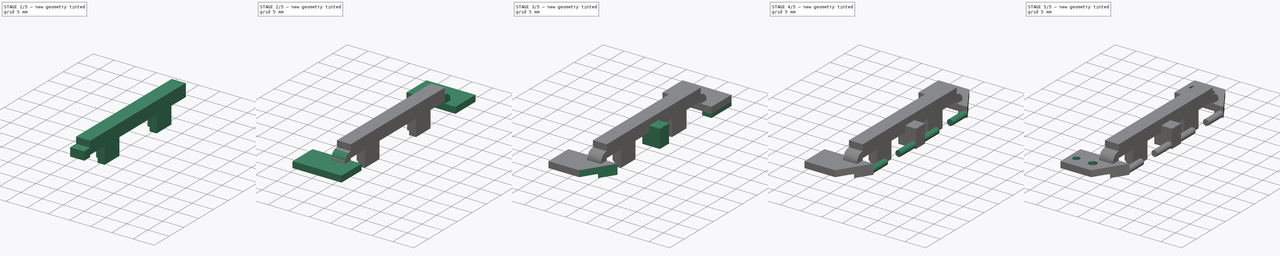
[diagram: build sequence overview — one tinted view per stage of 5, left to right]
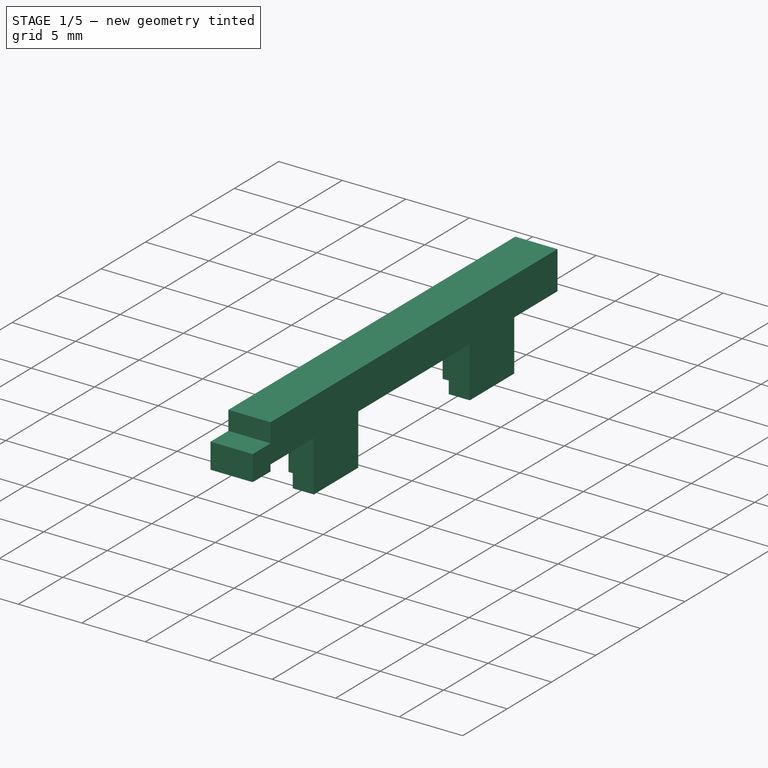
[diagram: stage 1 of 5 — iso view after this stage's code; geometry added in this stage tinted green]
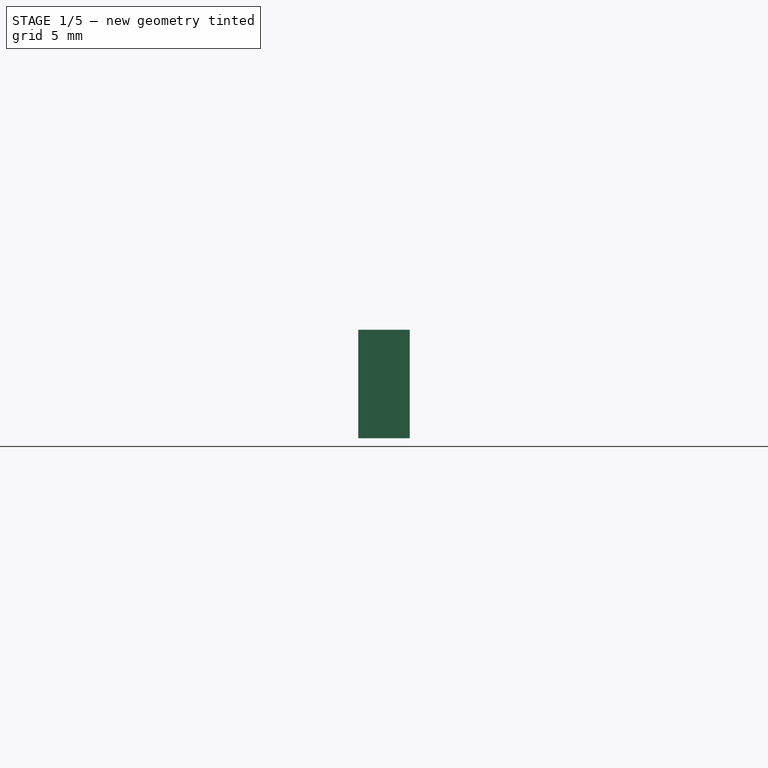
[diagram: stage 1 of 5 — front view after this stage's code; geometry added in this stage tinted green]
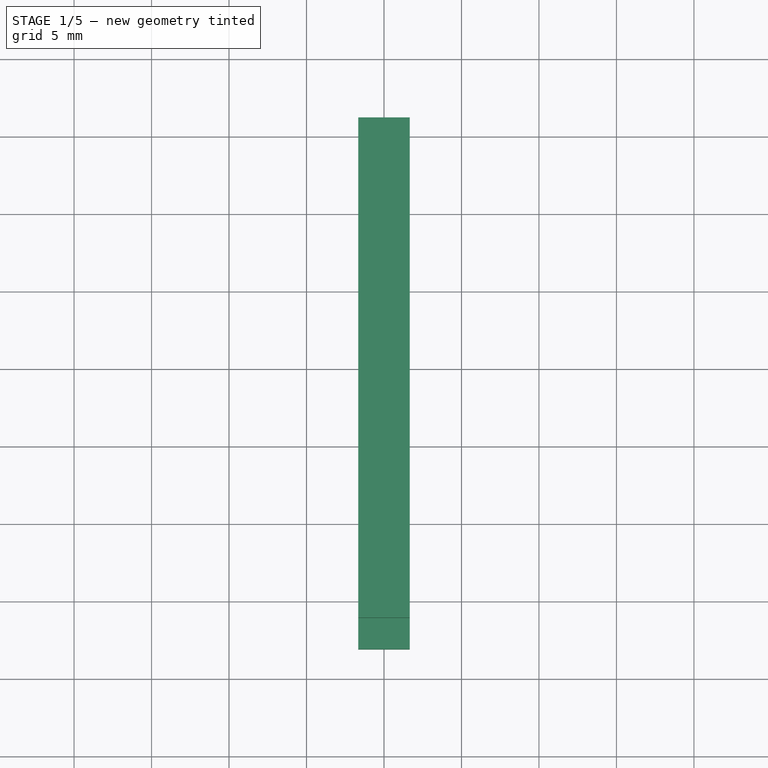
[diagram: stage 1 of 5 — top view after this stage's code; geometry added in this stage tinted green]
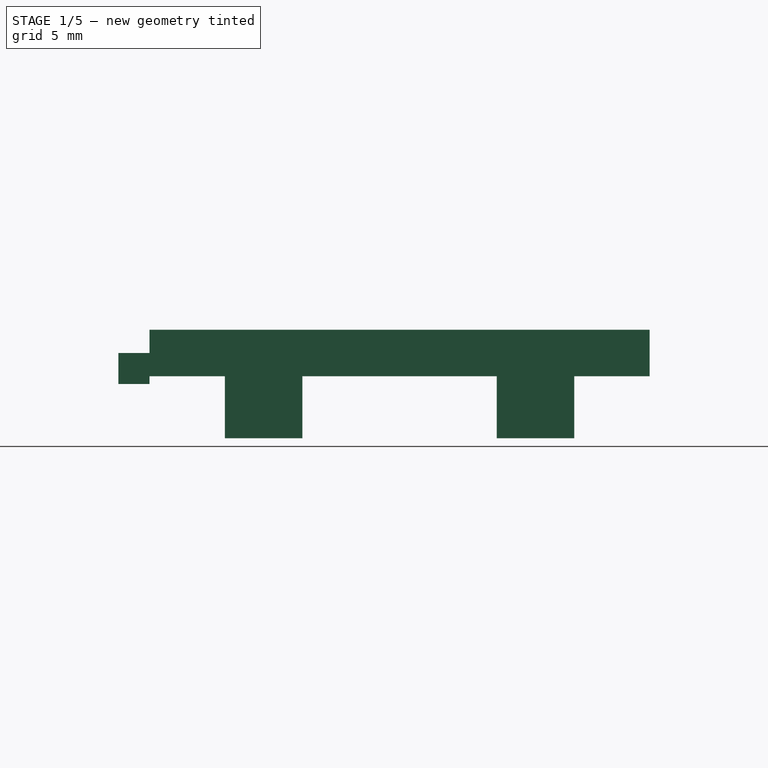
[diagram: stage 1 of 5 — right view after this stage's code; geometry added in this stage tinted green]
FCSTD DOCUMENT  (FreeCAD 0.19R24291 (Git))
Label: F1-4
License: All rights reserved
LicenseURL: http://en.wikipedia.org/wiki/All_rights_reserved
objects: Sketcher::SketchObject×11, PartDesign::Mirrored×9, PartDesign::Pad×8, PartDesign::Pocket×3, PartDesign::Fillet×2, PartDesign::Body×1
note: 47 computed .brp shape members not serialized (recipe doc carries the construction recipe); baked Part::Feature solids carry a one-line shape summary decoded from their .brp

FEATURE [Sketcher::SketchObject] Sketch
  FullyConstrained = true
  MapMode = 5
  Support = -> [XY_Plane]
  sketch-geometry (4):
    g0: LineSegment StartX=-1.66 StartY=16.14 StartZ=0 EndX=1.66 EndY=16.14 EndZ=0
    g1: LineSegment StartX=1.66 StartY=16.14 StartZ=0 EndX=1.66 EndY=-16.14 EndZ=0
    g2: LineSegment StartX=1.66 StartY=-16.14 StartZ=0 EndX=-1.66 EndY=-16.14 EndZ=0
    g3: LineSegment StartX=-1.66 StartY=-16.14 StartZ=0 EndX=-1.66 EndY=16.14 EndZ=0
  constraints (10):
    c: Coincident(g0,g1)
    c: Coincident(g1,g2)
    c: Coincident(g2,g3)
    c: Coincident(g3,g0)
    c: Horizontal(g2)
    c: Vertical(g3)
    c: Distance(g1) = 32.28
    c: Symmetric(g0,g1,g-1)
    c: Symmetric(g0,g0,g-2)
    c: Distance(g0) = 3.32
FEATURE [PartDesign::Pad] Pad
  Direction = (1,1,1)
  Length = 3
  Length2 = 100
  Profile = -> Sketch
  Type = 0
FEATURE [Sketcher::SketchObject] Sketch006
  FullyConstrained = true
  MapMode = 5
  Placement = pos=(0,0,0) rot=(1,0,0;1.5708rad)
  Support = -> [XZ_Plane]
  sketch-geometry (4):
    g0: LineSegment StartX=0 StartY=1.5 StartZ=0 EndX=4.25 EndY=1.5 EndZ=0
    g1: LineSegment StartX=4.25 StartY=1.5 StartZ=0 EndX=4.25 EndY=-2.9 EndZ=0
    g2: LineSegment StartX=4.25 StartY=-2.9 StartZ=0 EndX=0 EndY=-2.9 EndZ=0
    g3: LineSegment StartX=0 StartY=-2.9 StartZ=0 EndX=0 EndY=1.5 EndZ=0
  constraints (11):
    c: Coincident(g0,g1)
    c: Coincident(g1,g2)
    c: Coincident(g2,g3)
    c: Coincident(g3,g0)
    c: Horizontal(g0)
    c: Horizontal(g2)
    c: Vertical(g1)
    c: DistanceY(g-1,g0) = 1.5
    c: Tangent(g3,g-2)
    c: Distance(g2) = 4.25
    c: Distance(g1) = 4.4
FEATURE [Sketcher::SketchObject] Sketch001
  ExternalGeometry = -> [Pad]
  FullyConstrained = true
  MapMode = 5
  Placement = pos=(0,0,0) rot=(1,0,0;3.14159rad)
  Support = -> [Pad]
  sketch-geometry (8):
    g0: LineSegment StartX=1.66 StartY=6.275 StartZ=0 EndX=1.66 EndY=11.275 EndZ=0
    g1: LineSegment StartX=1.66 StartY=11.275 StartZ=0 EndX=0 EndY=11.275 EndZ=0
    g2: LineSegment StartX=0 StartY=11.275 StartZ=0 EndX=0 EndY=9.385 EndZ=0
    g3: LineSegment StartX=0 StartY=9.385 StartZ=0 EndX=-1.66 EndY=9.385 EndZ=0
    g4: LineSegment StartX=-1.66 StartY=9.385 StartZ=0 EndX=-1.66 EndY=7.965 EndZ=0
    g5: LineSegment StartX=-1.66 StartY=7.965 StartZ=0 EndX=0 EndY=7.965 EndZ=0
    g6: LineSegment StartX=0 StartY=7.965 StartZ=0 EndX=0 EndY=6.275 EndZ=0
    g7: LineSegment StartX=0 StartY=6.275 StartZ=0 EndX=1.66 EndY=6.275 EndZ=0
  constraints (23):
    c: PointOnObject(g0,g-3)
    c: PointOnObject(g0,g-3)
    c: Coincident(g1,g0)
    c: PointOnObject(g1,g-2)
    c: Coincident(g2,g1)
    c: PointOnObject(g2,g-2)
    c: Coincident(g3,g2)
    c: Coincident(g5,g4)
    c: PointOnObject(g5,g-2)
    c: Horizontal(g5)
    c: PointOnObject(g6,g-2)
    c: Coincident(g7,g6)
    c: Parallel(g1,g7)
    c: Distance(g0) = 5
    c: Perpendicular(g1,g0)
    c: Distance(g2) = 1.89
    c: Perpendicular(g3,g2)
    c: Tangent(g-4,g4)
    c: Coincident(g4,g3)
    c: Distance(g4) = 1.42
    c: Coincident(g7,g0)
    c: DistanceY(g-1,g0) = 6.275
    c: Coincident(g6,g5)
FEATURE [PartDesign::Pad] Pad001
  BaseFeature = -> Pad
  Direction = (1,1,1)
  Length = 4
  Length2 = 100
  Profile = -> Sketch001
  Type = 0
FEATURE [PartDesign::Mirrored] Mirrored
  BaseFeature = -> Pad001
  MirrorPlane = -> Sketch001 [H_Axis]
  Originals = -> [Pad001]
FEATURE [Sketcher::SketchObject] Sketch002
  ExternalGeometry = -> [Mirrored]
  FullyConstrained = true
  MapMode = 5
  Placement = pos=(0,-16.14,0) rot=(1,0,0;1.5708rad)
  Support = -> [Mirrored]
  sketch-geometry (4):
    g0: LineSegment StartX=-1.66 StartY=1.5 StartZ=0 EndX=1.66 EndY=1.5 EndZ=0
    g1: LineSegment StartX=1.66 StartY=1.5 StartZ=0 EndX=1.66 EndY=-0.5 EndZ=0
    g2: LineSegment StartX=1.66 StartY=-0.5 StartZ=0 EndX=-1.66 EndY=-0.5 EndZ=0
    g3: LineSegment StartX=-1.66 StartY=-0.5 StartZ=0 EndX=-1.66 EndY=1.5 EndZ=0
  constraints (10):
    c: Coincident(g0,g1)
    c: Coincident(g1,g2)
    c: Coincident(g2,g3)
    c: Coincident(g3,g0)
    c: Horizontal(g0)
    c: Horizontal(g2)
    c: Tangent(g3,g-4)
    c: Tangent(g-3,g1)
    c: Distance(g0,g-5) = 1.5
    c: Distance(g2,g0) = 2
FEATURE [PartDesign::Pad] Pad002
  BaseFeature = -> Mirrored
  Direction = (1,1,1)
  Length = 2.01
  Length2 = 100
  Profile = -> Sketch002
  Type = 0
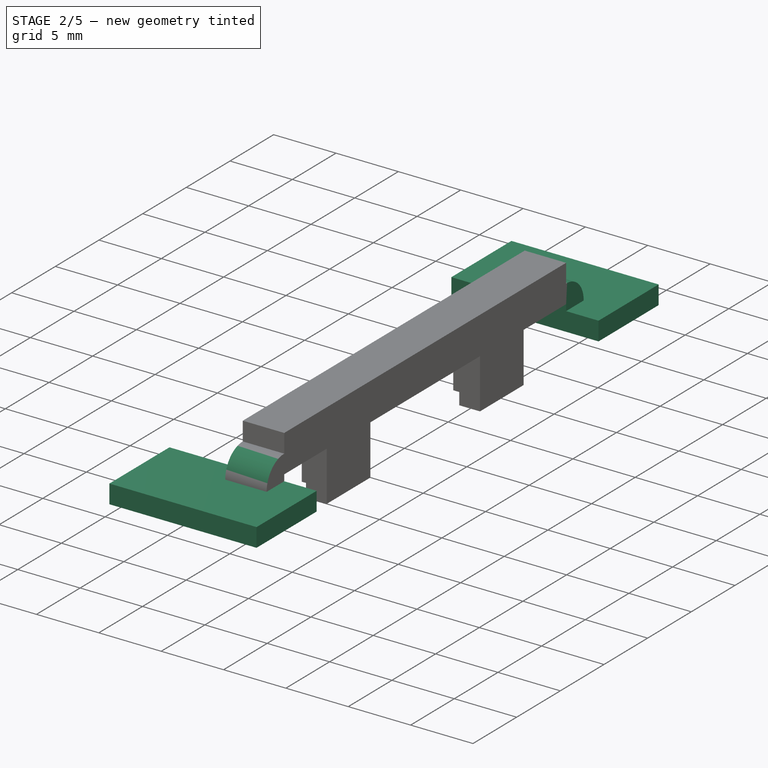
[diagram: stage 2 of 5 — iso view after this stage's code; geometry added in this stage tinted green]
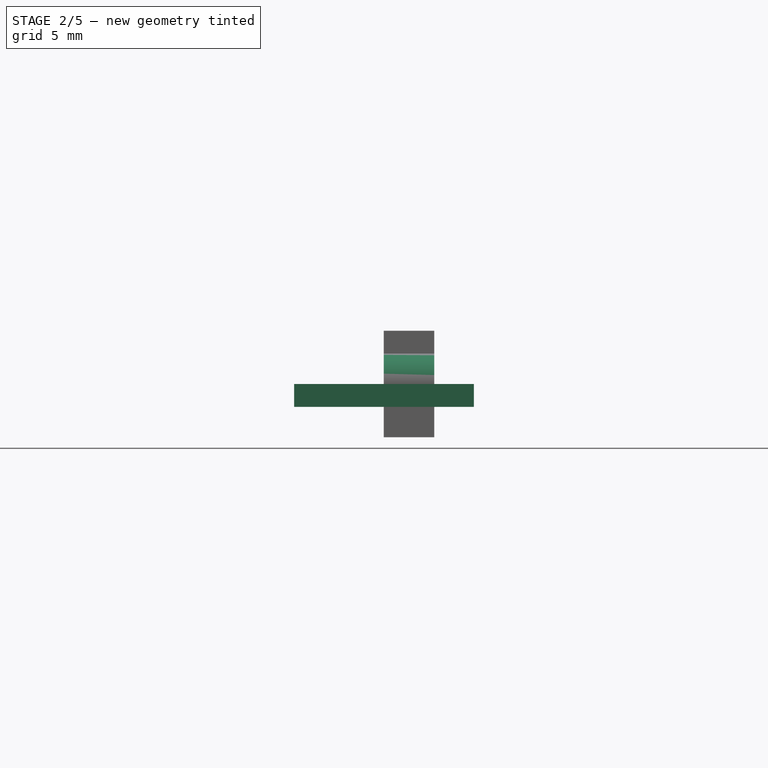
[diagram: stage 2 of 5 — front view after this stage's code; geometry added in this stage tinted green]
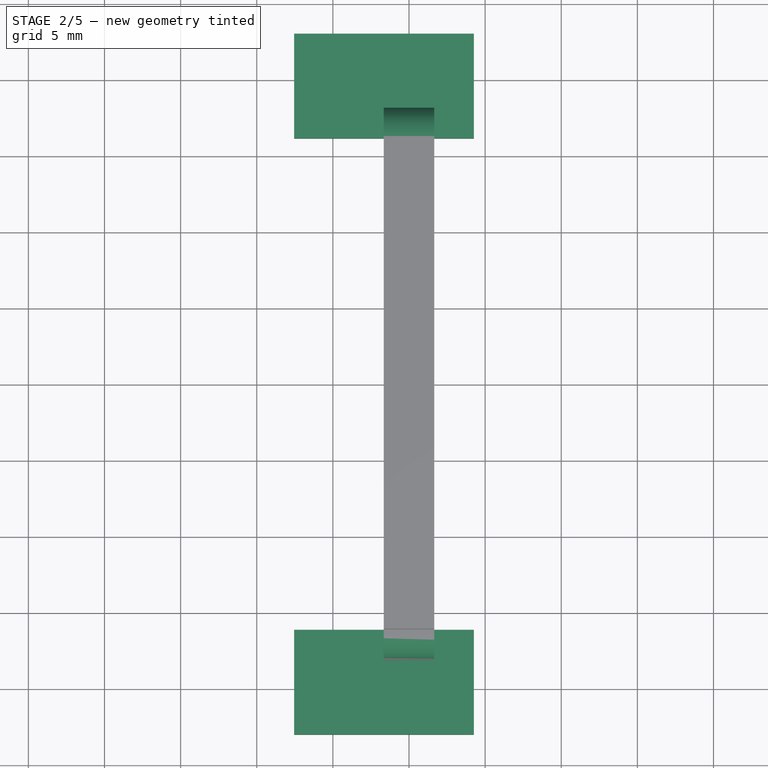
[diagram: stage 2 of 5 — top view after this stage's code; geometry added in this stage tinted green]
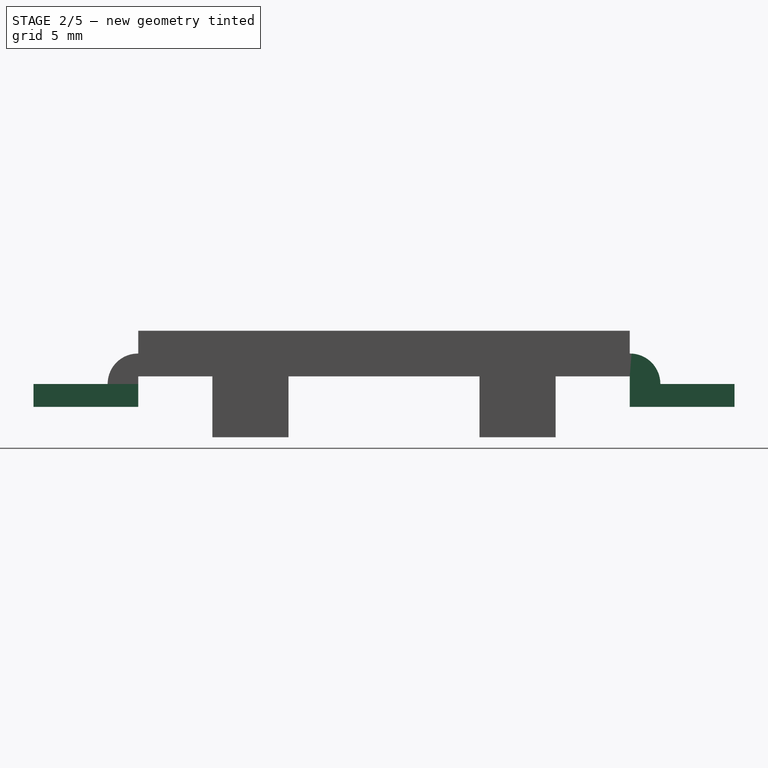
[diagram: stage 2 of 5 — right view after this stage's code; geometry added in this stage tinted green]
FEATURE [PartDesign::Fillet] Fillet
  Base = -> Pad002 [Edge63]
  BaseFeature = -> Pad002
  Radius = 1.99
  SupportTransform = false
FEATURE [PartDesign::Mirrored] Mirrored001
  BaseFeature = -> Fillet
  MirrorPlane = -> XZ_Plane
  Originals = -> [Pad002]
FEATURE [PartDesign::Fillet] Fillet001
  Base = -> Mirrored001 [Edge67]
  BaseFeature = -> Mirrored001
  Radius = 1.99
  SupportTransform = false
FEATURE [Sketcher::SketchObject] Sketch003
  ExternalGeometry = -> [Fillet001]
  FullyConstrained = true
  MapMode = 5
  Placement = pos=(0,-1e-16,-0.5) rot=(1,0,0;3.14159rad)
  Support = -> [Fillet001]
  sketch-geometry (4):
    g0: LineSegment StartX=4.26 StartY=16.14 StartZ=0 EndX=-7.54 EndY=16.14 EndZ=0
    g1: LineSegment StartX=-7.54 StartY=16.14 StartZ=0 EndX=-7.54 EndY=23.02 EndZ=0
    g2: LineSegment StartX=-7.54 StartY=23.02 StartZ=0 EndX=4.26 EndY=23.02 EndZ=0
    g3: LineSegment StartX=4.26 StartY=23.02 StartZ=0 EndX=4.26 EndY=16.14 EndZ=0
  constraints (11):
    c: Coincident(g0,g1)
    c: Coincident(g1,g2)
    c: Coincident(g2,g3)
    c: Coincident(g3,g0)
    c: Horizontal(g2)
    c: Vertical(g1)
    c: Vertical(g3)
    c: Tangent(g0,g-3)
    c: Distance(g3) = 6.88
    c: Distance(g2) = 11.8
    c: Distance(g-3,g0) = 5.88
FEATURE [PartDesign::Pad] Pad003
  BaseFeature = -> Fillet001
  Direction = (1,1,1)
  Length = 1.5
  Length2 = 100
  Profile = -> Sketch003
  Type = 0
FEATURE [PartDesign::Mirrored] Mirrored002
  BaseFeature = -> Pad003
  MirrorPlane = -> XZ_Plane
  Originals = -> [Pad003]
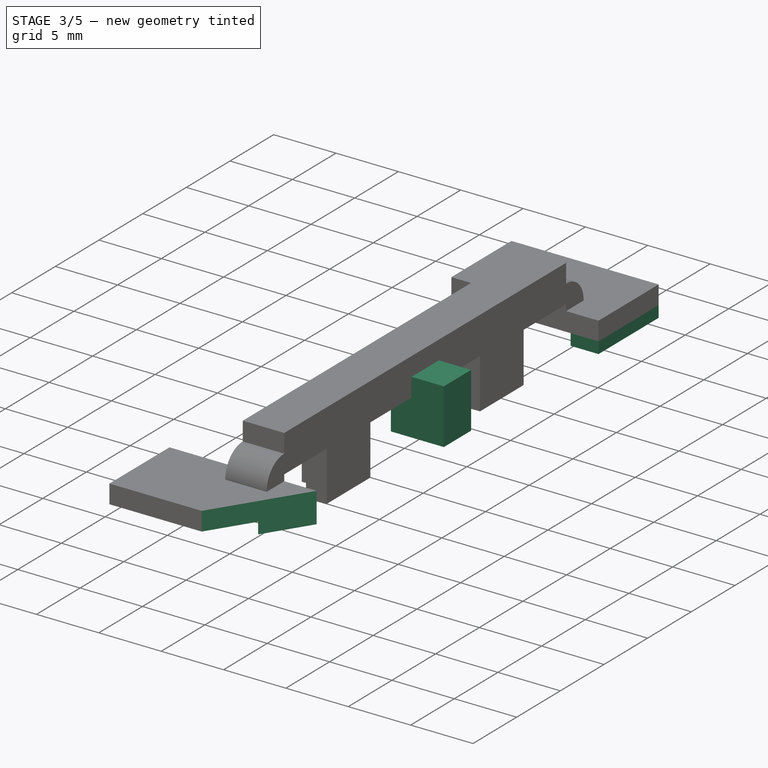
[diagram: stage 3 of 5 — iso view after this stage's code; geometry added in this stage tinted green]
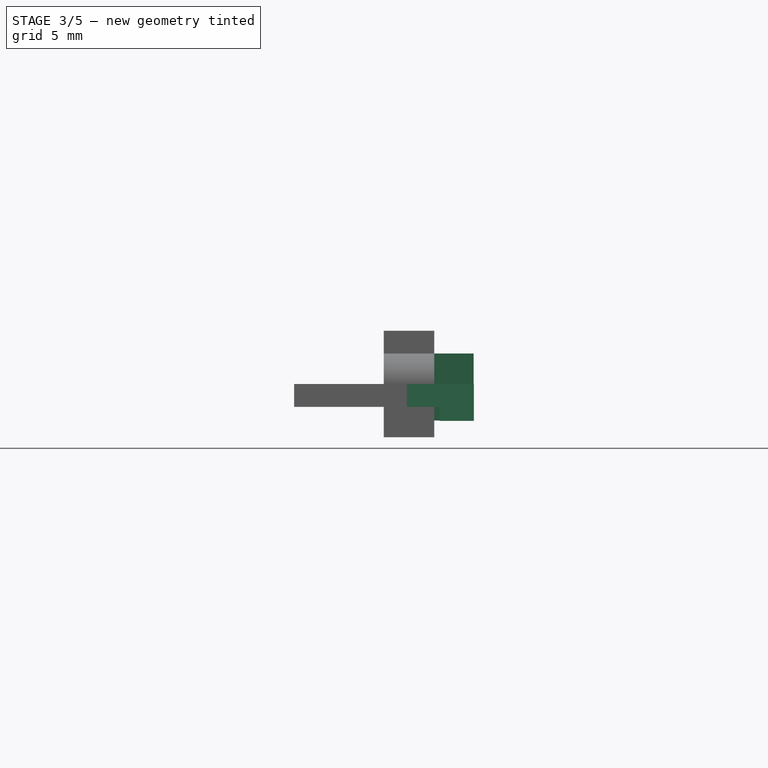
[diagram: stage 3 of 5 — front view after this stage's code; geometry added in this stage tinted green]
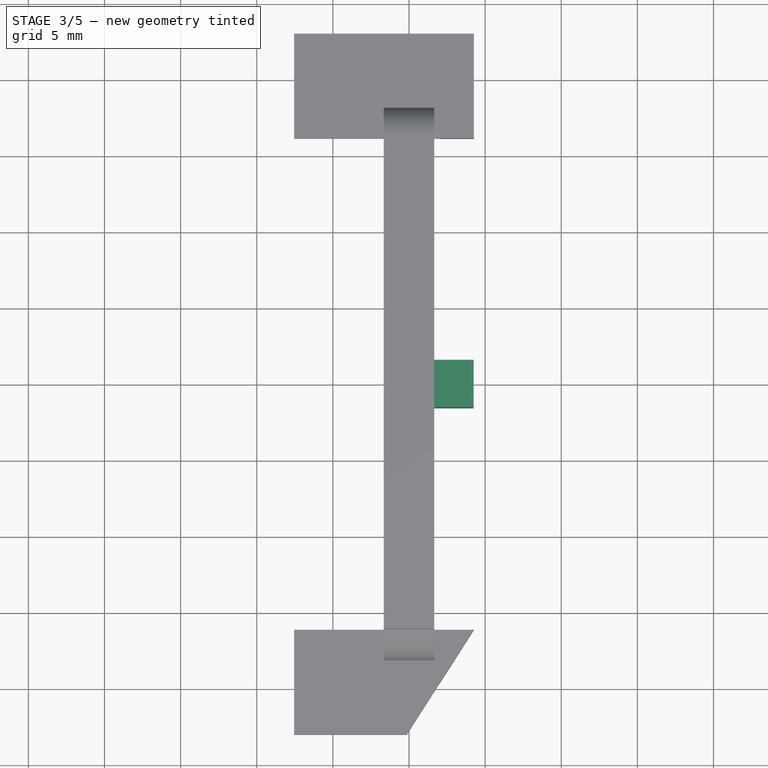
[diagram: stage 3 of 5 — top view after this stage's code; geometry added in this stage tinted green]
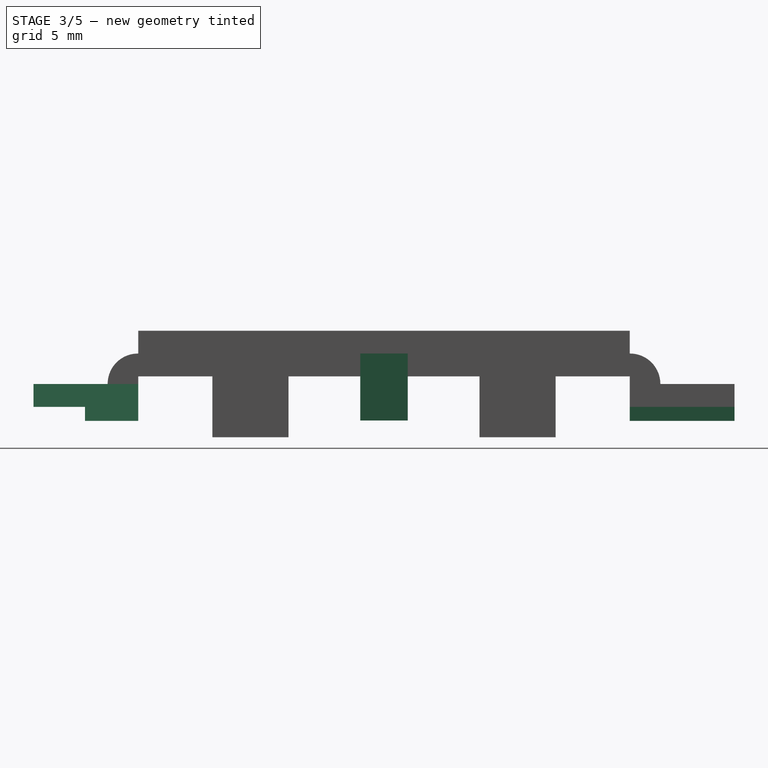
[diagram: stage 3 of 5 — right view after this stage's code; geometry added in this stage tinted green]
FEATURE [PartDesign::Pad] Pad005
  BaseFeature = -> Mirrored002
  Direction = (1,1,1)
  Length = 1.56
  Length2 = 1.56
  Profile = -> Sketch006
  Type = 4
FEATURE [Sketcher::SketchObject] Sketch007
  ExternalGeometry = -> [Pad005]
  FullyConstrained = true
  MapMode = 5
  Placement = pos=(0,-4e-16,-2) rot=(1,0,0;3.14159rad)
  Support = -> [Pad005]
  sketch-geometry (4):
    g0: LineSegment StartX=4.26 StartY=23.02 StartZ=0 EndX=2.02 EndY=23.02 EndZ=0
    g1: LineSegment StartX=2.02 StartY=23.02 StartZ=0 EndX=2.02 EndY=16.14 EndZ=0
    g2: LineSegment StartX=2.02 StartY=16.14 StartZ=0 EndX=4.26 EndY=16.14 EndZ=0
    g3: LineSegment StartX=4.26 StartY=16.14 StartZ=0 EndX=4.26 EndY=23.02 EndZ=0
  constraints (9):
    c: Coincident(g0,g1)
    c: Coincident(g1,g2)
    c: Coincident(g2,g3)
    c: Coincident(g3,g0)
    c: Vertical(g1)
    c: Tangent(g3,g-6)
    c: Tangent(g-3,g0)
    c: Tangent(g2,g-5)
    c: Distance(g2) = 2.24
FEATURE [PartDesign::Pad] Pad006
  BaseFeature = -> Pad005
  Direction = (1,1,1)
  Length = 0.92
  Length2 = 100
  Profile = -> Sketch007
  Type = 0
FEATURE [PartDesign::Mirrored] Mirrored003
  BaseFeature = -> Pad006
  MirrorPlane = -> XZ_Plane
  Originals = -> [Pad006]
FEATURE [Sketcher::SketchObject] Sketch008
  ExternalGeometry = -> [Mirrored003]
  FullyConstrained = true
  MapMode = 5
  Placement = pos=(0,-1e-16,-0.5) rot=(0,0,1;0rad)
  Support = -> [Mirrored003]
  sketch-geometry (3):
    g0: LineSegment StartX=4.26 StartY=-16.14 StartZ=0 EndX=4.26 EndY=-23.02 EndZ=0
    g1: LineSegment StartX=4.26 StartY=-23.02 StartZ=0 EndX=-0.14 EndY=-23.02 EndZ=0
    g2: LineSegment StartX=-0.14 StartY=-23.02 StartZ=0 EndX=4.26 EndY=-16.14 EndZ=0
  constraints (7):
    c: Coincident(g0,g-3)
    c: Coincident(g0,g-4)
    c: Coincident(g1,g0)
    c: PointOnObject(g1,g-4)
    c: Coincident(g2,g1)
    c: Coincident(g2,g0)
    c: Distance(g1) = 4.4
FEATURE [PartDesign::Pocket] Pocket
  BaseFeature = -> Mirrored003
  Length = 5
  Length2 = 100
  Profile = -> Sketch008
  Type = 0
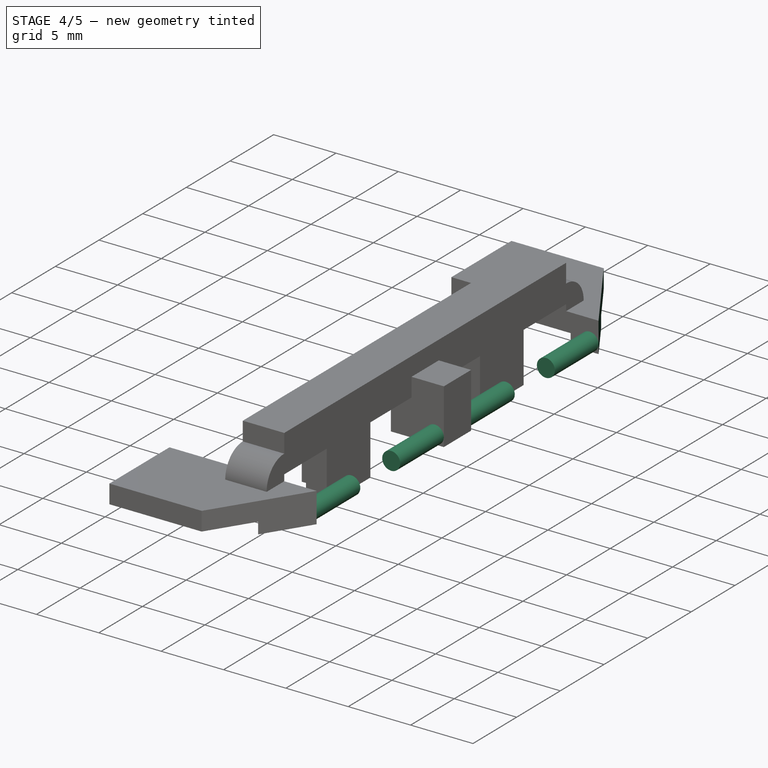
[diagram: stage 4 of 5 — iso view after this stage's code; geometry added in this stage tinted green]
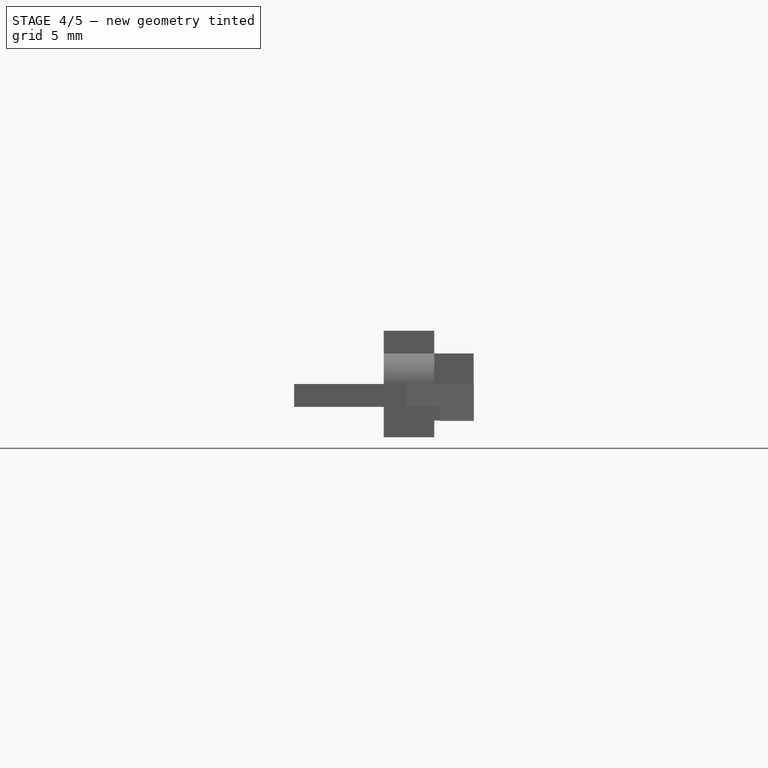
[diagram: stage 4 of 5 — front view after this stage's code; geometry added in this stage tinted green]
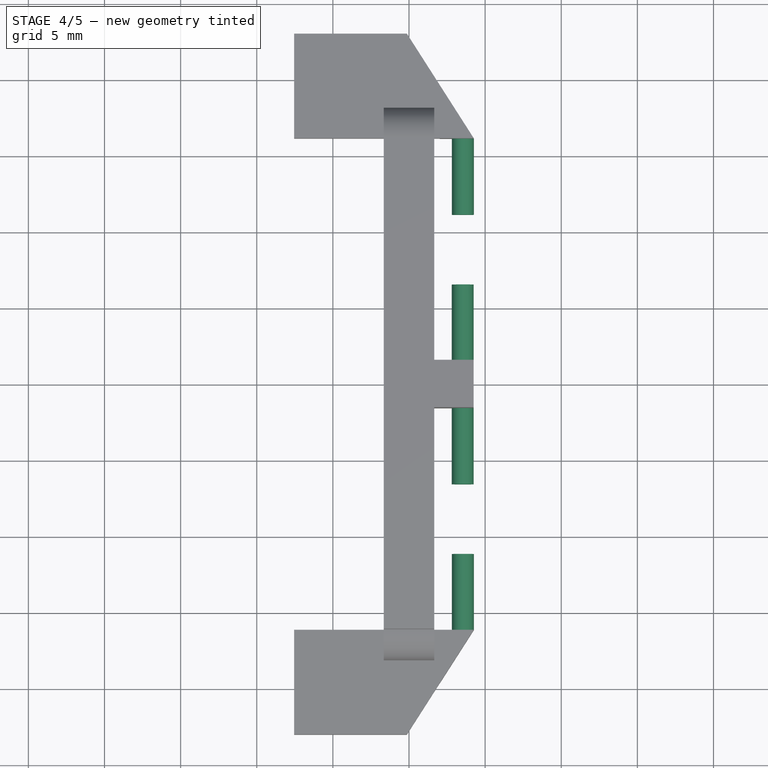
[diagram: stage 4 of 5 — top view after this stage's code; geometry added in this stage tinted green]
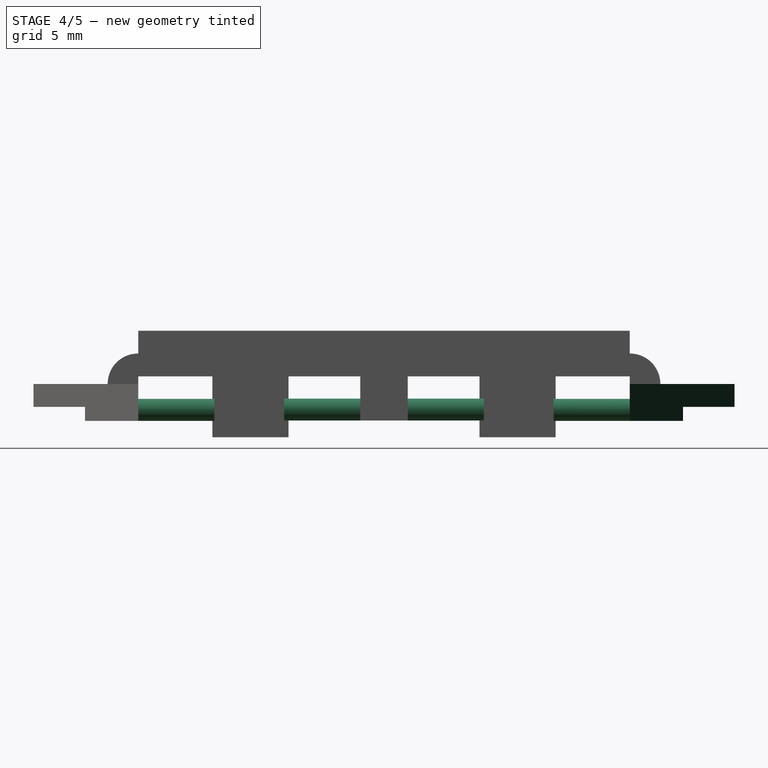
[diagram: stage 4 of 5 — right view after this stage's code; geometry added in this stage tinted green]
FEATURE [PartDesign::Mirrored] Mirrored004
  BaseFeature = -> Pocket
  MirrorPlane = -> XZ_Plane
  Originals = -> [Pocket]
FEATURE [Sketcher::SketchObject] Sketch009
  ExternalGeometry = -> [Mirrored004]
  FullyConstrained = true
  MapMode = 5
  Placement = pos=(9.728e-13,-16.14,3.6e-15) rot=(0,0.707107,0.707107;3.14159rad)
  Support = -> [Mirrored004]
  sketch-geometry (1):
    g0: Circle CenterX=-3.54 CenterY=-2.2 CenterZ=0 NormalX=0 NormalY=0 NormalZ=1 AngleXU=0 Radius=0.72
  constraints (3):
    c: Radius(g0) = 0.72
    c: Tangent(g0,g-3)
    c: Tangent(g0,g-4)
FEATURE [PartDesign::Pad] Pad007
  BaseFeature = -> Mirrored004
  Direction = (1,1,1)
  Length = 5
  Length2 = 100
  Profile = -> Sketch009
  Type = 0
FEATURE [PartDesign::Mirrored] Mirrored005
  BaseFeature = -> Pad007
  MirrorPlane = -> XZ_Plane
  Originals = -> [Pad007]
FEATURE [Sketcher::SketchObject] Sketch010
  ExternalGeometry = -> [Mirrored005]
  FullyConstrained = true
  MapMode = 5
  Placement = pos=(0,1.56,-3e-16) rot=(0,0.707107,0.707107;3.14159rad)
  Support = -> [Mirrored005]
  sketch-geometry (1):
    g0: Circle CenterX=-3.53 CenterY=-2.18 CenterZ=0 NormalX=0 NormalY=0 NormalZ=1 AngleXU=0 Radius=0.72
  constraints (3):
    c: Radius(g0) = 0.72
    c: Tangent(g0,g-4)
    c: Tangent(g0,g-3)
FEATURE [PartDesign::Pad] Pad008
  BaseFeature = -> Mirrored005
  Direction = (1,1,1)
  Length = 5
  Length2 = 100
  Profile = -> Sketch010
  Type = 0
FEATURE [PartDesign::Mirrored] Mirrored006
  BaseFeature = -> Pad008
  MirrorPlane = -> XZ_Plane
  Originals = -> [Pad008]
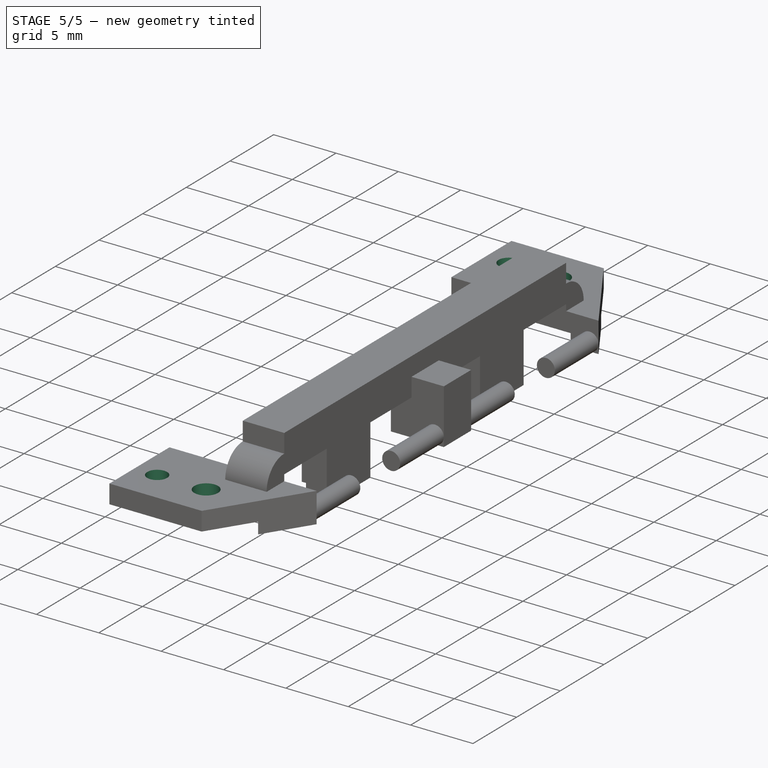
[diagram: stage 5 of 5 — iso view after this stage's code; geometry added in this stage tinted green]
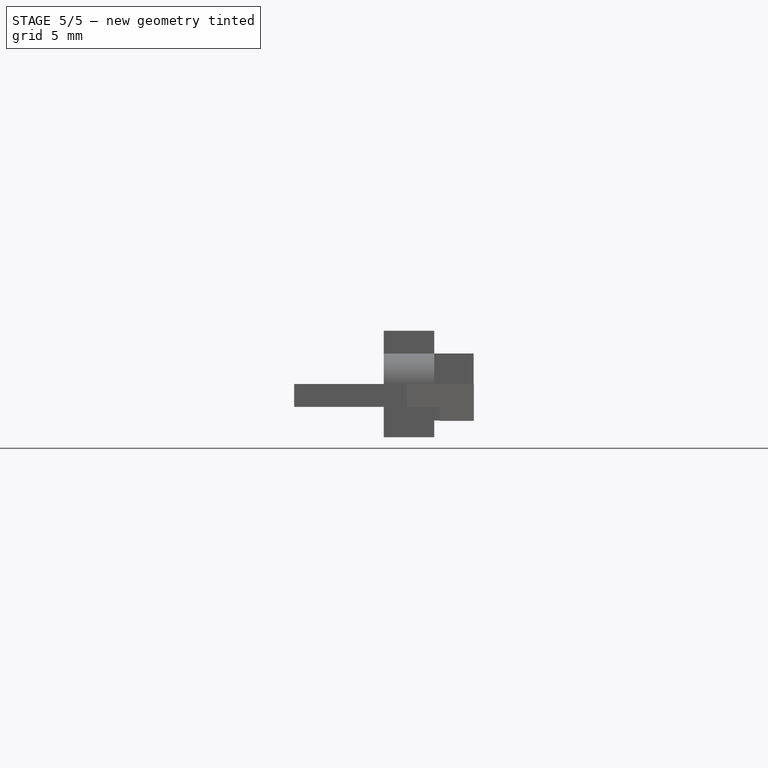
[diagram: stage 5 of 5 — front view after this stage's code; geometry added in this stage tinted green]
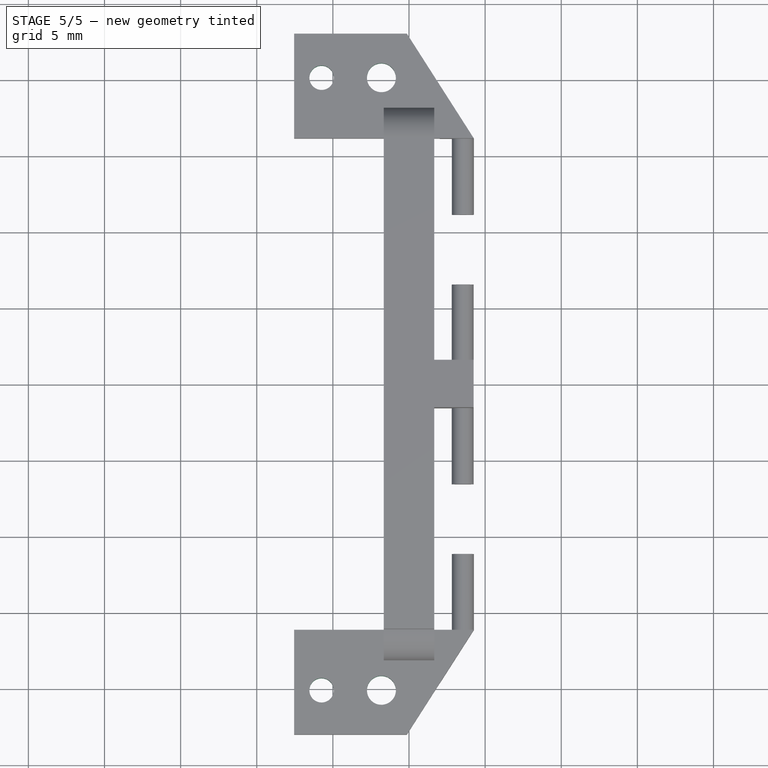
[diagram: stage 5 of 5 — top view after this stage's code; geometry added in this stage tinted green]
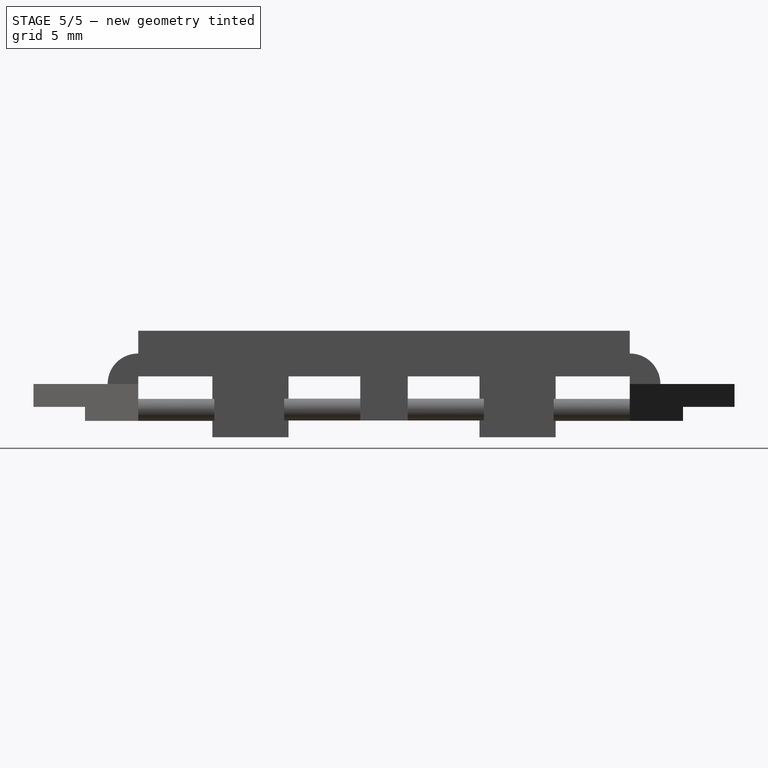
[diagram: stage 5 of 5 — right view after this stage's code; geometry added in this stage tinted green]
FEATURE [Sketcher::SketchObject] Sketch011
  ExternalGeometry = -> [Mirrored006]
  FullyConstrained = true
  MapMode = 5
  Placement = pos=(0,1e-16,-0.5) rot=(0,0,1;0rad)
  Support = -> [Mirrored006]
  sketch-geometry (1):
    g0: Circle CenterX=-5.74 CenterY=20.12 CenterZ=0 NormalX=0 NormalY=0 NormalZ=1 AngleXU=0 Radius=0.8
  constraints (3):
    c: Radius(g0) = 0.8
    c: Distance(g0,g-4) = 1.8
    c: DistanceY(g-1,g0) = 20.12
FEATURE [PartDesign::Pocket] Pocket001
  BaseFeature = -> Mirrored006
  Length = 5
  Length2 = 100
  Profile = -> Sketch011
  Type = 0
FEATURE [PartDesign::Mirrored] Mirrored007
  BaseFeature = -> Pocket001
  MirrorPlane = -> XZ_Plane
  Originals = -> [Pocket001]
FEATURE [Sketcher::SketchObject] Sketch012
  ExternalGeometry = -> [Mirrored007]
  FullyConstrained = true
  MapMode = 5
  Placement = pos=(0,1e-16,-0.5) rot=(0,0,1;0rad)
  Support = -> [Mirrored007]
  sketch-geometry (1):
    g0: Circle CenterX=-1.81 CenterY=20.12 CenterZ=0 NormalX=0 NormalY=0 NormalZ=1 AngleXU=0 Radius=0.95
  constraints (3):
    c: Radius(g0) = 0.95
    c: Distance(g0,g-3) = 3.93
    c: DistanceY(g-1,g0) = 20.12
FEATURE [PartDesign::Pocket] Pocket002
  BaseFeature = -> Mirrored007
  Length = 5
  Length2 = 100
  Profile = -> Sketch012
  Type = 0
FEATURE [PartDesign::Mirrored] Mirrored008
  BaseFeature = -> Pocket002
  MirrorPlane = -> XZ_Plane
  Originals = -> [Pocket002]
FEATURE [PartDesign::Body] Body
  Group = -> [Sketch,Pad,Sketch001,Pad001,Mirrored,Sketch002,Pad002,Fillet,Mirrored001,Fillet001,Sketch003,Pad003,Mirrored002,Sketch006,Pad005,Sketch007,Pad006,Mirrored003,Sketch008,Pocket,Mirrored004,Sketch009,Pad007,Mirrored005,Sketch010,Pad008,Mirrored006,Sketch011,Pocket001,Mirrored007,Sketch012,Pocket002,Mirrored008]
  Origin = -> Origin
  Tip = -> Mirrored008
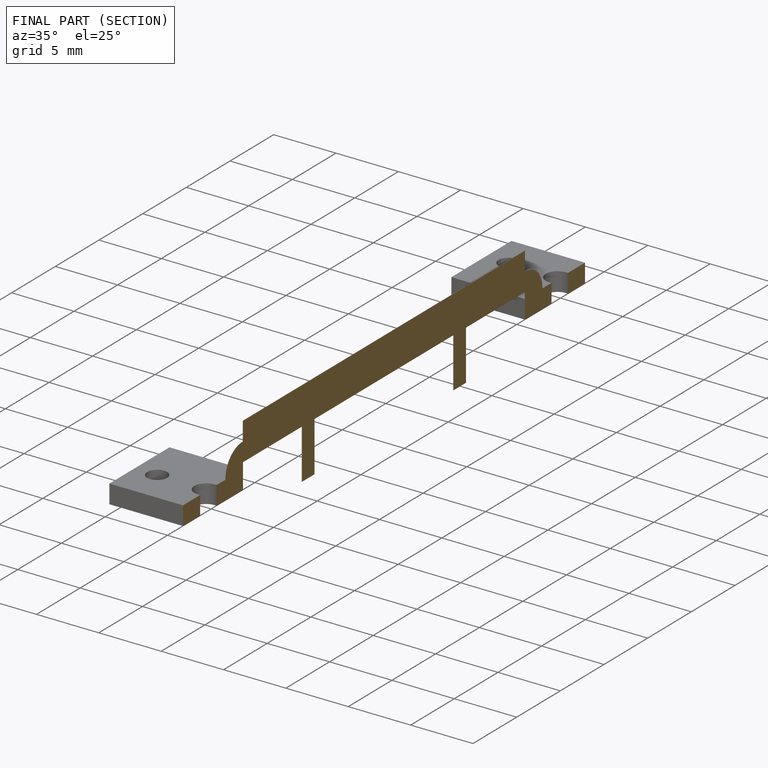
[diagram: finished part — half-section view (interior)]
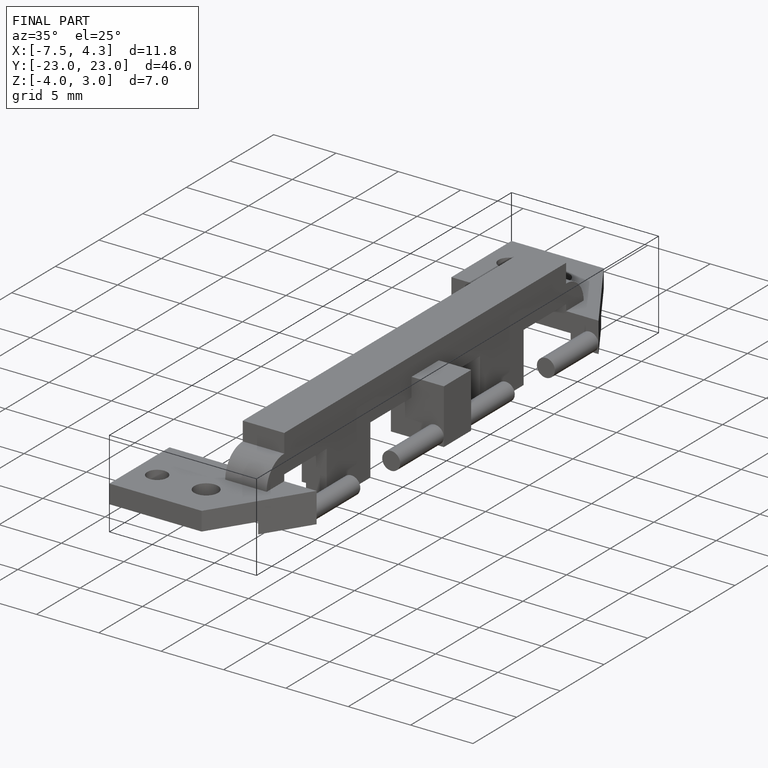
[diagram: finished part — iso view with bounding-box wireframe]
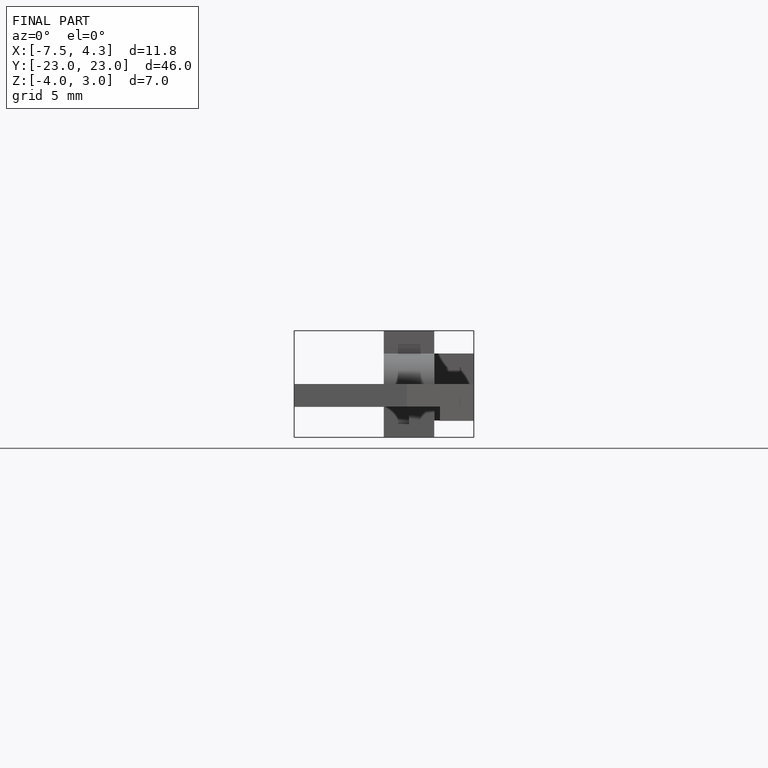
[diagram: finished part — front view with bounding-box wireframe]
